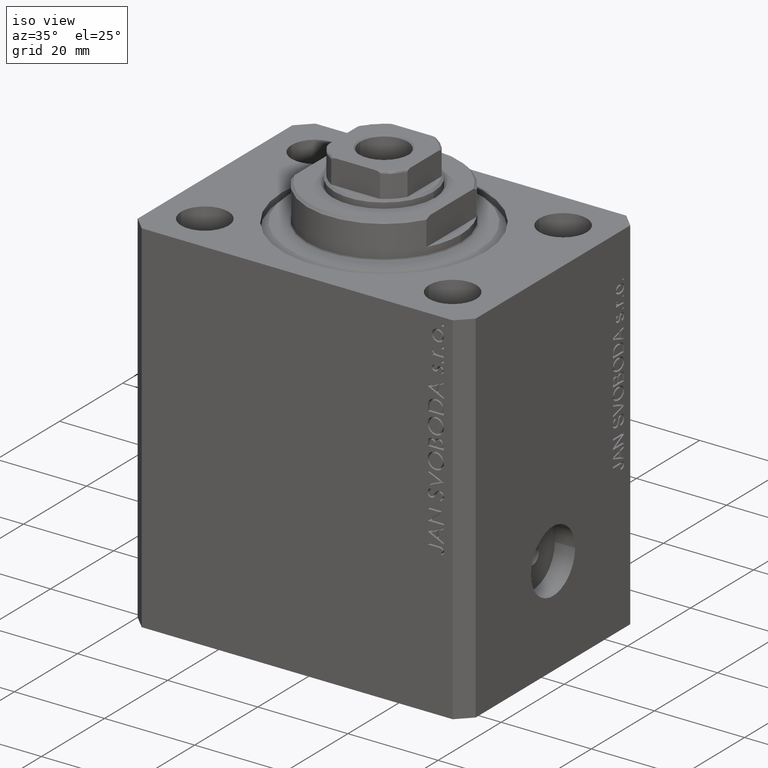
[diagram: clean part render]
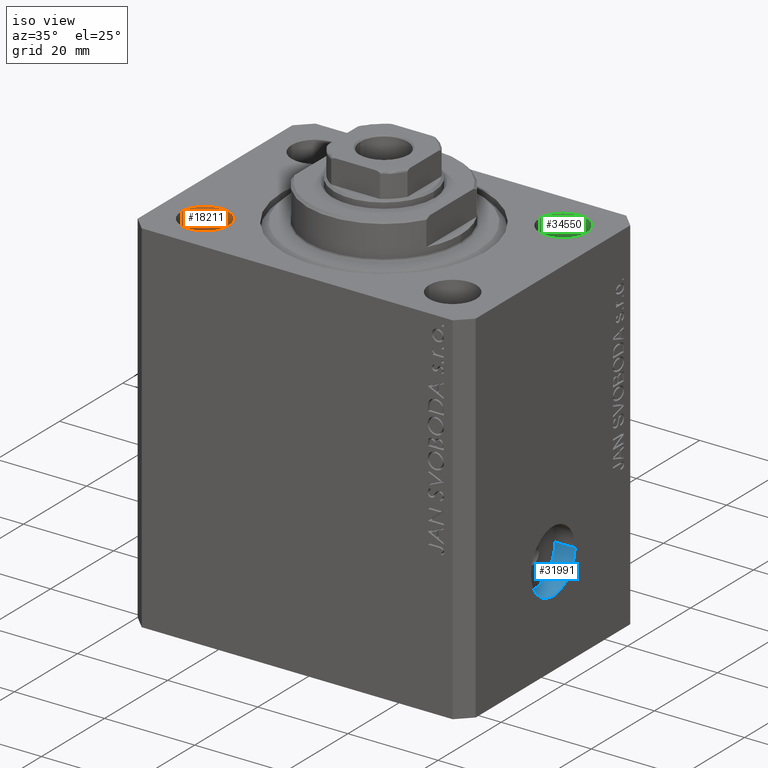
[diagram: same view with three faces highlighted in distinct colors, each labeled with its STEP entity id]
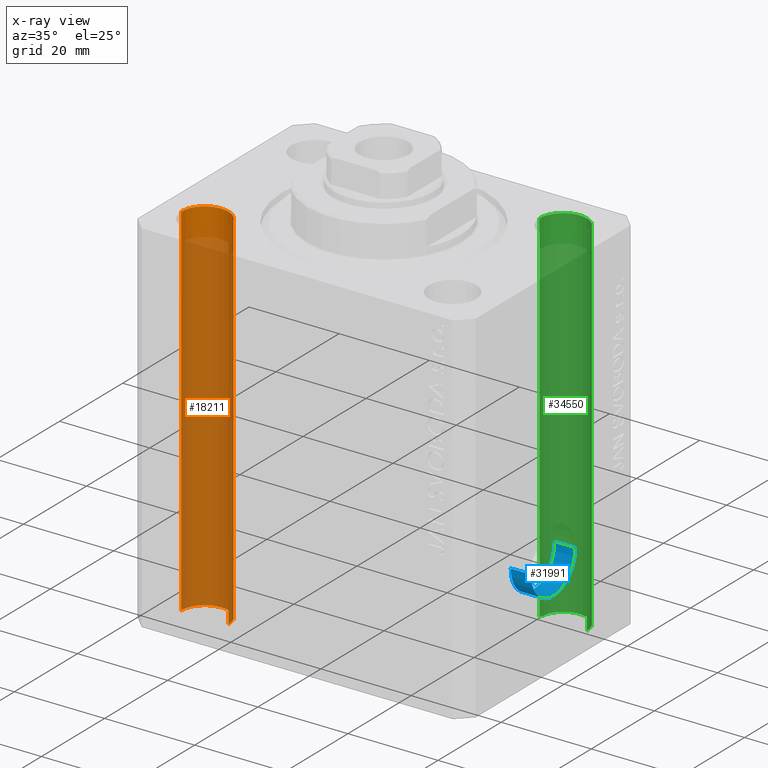
[diagram: x-ray of the same camera — body ghosted, the three highlighted faces saturated]
A machine part, iso view with three faces highlighted in distinct colors.
The next image is the same camera in x-ray (body ghosted, the three faces saturated) — at least one of them is partly hidden behind the body in this view.
Their STEP definitions:

[orange] entity #18211 — the highlighted cylindrical surface (edge-blend (fillet) strip) has radius 5.25 mm, axis along (0, 0, 1).
#1654 = DIRECTION ( 'NONE',  ( -0.000000000000000000, -0.000000000000000000, 1.000000000000000000 ) ) ;
#2170 = EDGE_CURVE ( 'NONE', #2631, #34001, #3725, .T. ) ;
#2529 = EDGE_CURVE ( 'NONE', #34367, #4119, #18902, .T. ) ;
#2631 = VERTEX_POINT ( 'NONE', #39115 ) ;
#2853 = ORIENTED_EDGE ( 'NONE', *, *, #37071, .F. ) ;
#3173 = FACE_OUTER_BOUND ( 'NONE', #4313, .T. ) ;
#3725 = CIRCLE ( 'NONE', #34793, 5.250000000000000888 ) ;
#4119 = VERTEX_POINT ( 'NONE', #25224 ) ;
#4313 = EDGE_LOOP ( 'NONE', ( #2853, #25876, #22078, #36600 ) ) ;
#4456 = CARTESIAN_POINT ( 'NONE',  ( -27.49999999999999289, -17.50000000000000000, -94.84924240491750425 ) ) ;
#6106 = DIRECTION ( 'NONE',  ( 0.000000000000000000, 0.000000000000000000, 1.000000000000000000 ) ) ;
#6908 = AXIS2_PLACEMENT_3D ( 'NONE', #4456, #27176, #16975 ) ;
#8077 = AXIS2_PLACEMENT_3D ( 'NONE', #30979, #6106, #17410 ) ;
#11174 = DIRECTION ( 'NONE',  ( -0.000000000000000000, -0.000000000000000000, -1.000000000000000000 ) ) ;
#16496 = VECTOR ( 'NONE', #32568, 1000.000000000000000 ) ;
#16975 = DIRECTION ( 'NONE',  ( 1.000000000000000000, 0.000000000000000000, 0.000000000000000000 ) ) ;
#17410 = DIRECTION ( 'NONE',  ( 1.000000000000000000, 0.000000000000000000, 0.000000000000000000 ) ) ;
#17781 = CARTESIAN_POINT ( 'NONE',  ( -22.24999999999999289, -17.50000000000000000, 0.000000000000000000 ) ) ;
#18211 = ADVANCED_FACE ( 'NONE', ( #3173 ), #27619, .F. ) ;
#18324 = CARTESIAN_POINT ( 'NONE',  ( -32.74999999999999289, -17.50000000000000000, -94.84924240491750425 ) ) ;
#18902 = CIRCLE ( 'NONE', #8077, 5.250000000000000888 ) ;
#19056 = CARTESIAN_POINT ( 'NONE',  ( -22.24999999999999289, -17.50000000000000000, -94.84924240491750425 ) ) ;
#22078 = ORIENTED_EDGE ( 'NONE', *, *, #27621, .T. ) ;
#22340 = CARTESIAN_POINT ( 'NONE',  ( -22.24999999999999289, -17.50000000000000000, -80.00000000000000000 ) ) ;
#25187 = LINE ( 'NONE', #19056, #42360 ) ;
#25205 = CARTESIAN_POINT ( 'NONE',  ( -27.49999999999999289, -17.50000000000000000, -80.00000000000000000 ) ) ;
#25224 = CARTESIAN_POINT ( 'NONE',  ( -32.74999999999999289, -17.50000000000000000, 0.000000000000000000 ) ) ;
#25876 = ORIENTED_EDGE ( 'NONE', *, *, #2170, .T. ) ;
#27176 = DIRECTION ( 'NONE',  ( -0.000000000000000000, -0.000000000000000000, 1.000000000000000000 ) ) ;
#27619 = CYLINDRICAL_SURFACE ( 'NONE', #6908, 5.250000000000000888 ) ;
#27621 = EDGE_CURVE ( 'NONE', #34001, #34367, #25187, .T. ) ;
#28299 = LINE ( 'NONE', #18324, #16496 ) ;
#30979 = CARTESIAN_POINT ( 'NONE',  ( -27.49999999999999289, -17.50000000000000000, 0.000000000000000000 ) ) ;
#32568 = DIRECTION ( 'NONE',  ( -0.000000000000000000, -0.000000000000000000, 1.000000000000000000 ) ) ;
#34001 = VERTEX_POINT ( 'NONE', #22340 ) ;
#34367 = VERTEX_POINT ( 'NONE', #17781 ) ;
#34793 = AXIS2_PLACEMENT_3D ( 'NONE', #25205, #11174, #39443 ) ;
#36600 = ORIENTED_EDGE ( 'NONE', *, *, #2529, .T. ) ;
#37071 = EDGE_CURVE ( 'NONE', #2631, #4119, #28299, .T. ) ;
#39115 = CARTESIAN_POINT ( 'NONE',  ( -32.74999999999999289, -17.50000000000000000, -80.00000000000000000 ) ) ;
#39443 = DIRECTION ( 'NONE',  ( 1.000000000000000000, 0.000000000000000000, 0.000000000000000000 ) ) ;
#42360 = VECTOR ( 'NONE', #1654, 1000.000000000000000 ) ;

[blue] entity #31991 — the highlighted cylindrical surface (partial cylindrical patch) has radius 7 mm, axis along (1, -0, 0).
#1193 = ORIENTED_EDGE ( 'NONE', *, *, #42527, .T. ) ;
#3987 = LINE ( 'NONE', #10105, #17168 ) ;
#4217 = EDGE_LOOP ( 'NONE', ( #29700, #1193, #35819, #43515 ) ) ;
#4602 = CARTESIAN_POINT ( 'NONE',  ( 33.00000000000017053, -6.999999999999920064, -58.00000000000000000 ) ) ;
#6988 = AXIS2_PLACEMENT_3D ( 'NONE', #31438, #21255, #35063 ) ;
#7868 = AXIS2_PLACEMENT_3D ( 'NONE', #16829, #10486, #17277 ) ;
#8062 = CARTESIAN_POINT ( 'NONE',  ( 37.50000000000034817, 7.000000000000006217, -58.00000000000000000 ) ) ;
#8270 = CARTESIAN_POINT ( 'NONE',  ( 33.00000000000025580, 7.279302749271440798E-14, -58.00000000000000000 ) ) ;
#8411 = VERTEX_POINT ( 'NONE', #14695 ) ;
#10105 = CARTESIAN_POINT ( 'NONE',  ( 33.00000000000034817, 7.000000000000065725, -58.00000000000000000 ) ) ;
#10486 = DIRECTION ( 'NONE',  ( 1.000000000000000000, -1.334402673828349134E-14, 0.000000000000000000 ) ) ;
#12956 = LINE ( 'NONE', #19288, #25312 ) ;
#13390 = DIRECTION ( 'NONE',  ( 1.000000000000000000, -1.334402673828348976E-14, -0.000000000000000000 ) ) ;
#14695 = CARTESIAN_POINT ( 'NONE',  ( 33.00000000000034817, 7.000000000000065725, -58.00000000000000000 ) ) ;
#16829 = CARTESIAN_POINT ( 'NONE',  ( 33.00000000000025580, 7.279302749271440798E-14, -58.00000000000000000 ) ) ;
#17168 = VECTOR ( 'NONE', #17791, 1000.000000000000000 ) ;
#17277 = DIRECTION ( 'NONE',  ( 1.288651725011343653E-14, 1.000000000000000000, 0.000000000000000000 ) ) ;
#17791 = DIRECTION ( 'NONE',  ( 1.000000000000000000, -1.334402673828348976E-14, -0.000000000000000000 ) ) ;
#19288 = CARTESIAN_POINT ( 'NONE',  ( 33.00000000000017053, -6.999999999999920064, -58.00000000000000000 ) ) ;
#21255 = DIRECTION ( 'NONE',  ( 1.000000000000000000, -1.334402673828349134E-14, 0.000000000000000000 ) ) ;
#21866 = VERTEX_POINT ( 'NONE', #4602 ) ;
#25312 = VECTOR ( 'NONE', #13390, 1000.000000000000000 ) ;
#25478 = FACE_OUTER_BOUND ( 'NONE', #4217, .T. ) ;
#29096 = DIRECTION ( 'NONE',  ( 1.000000000000000000, -1.334402673828348976E-14, -0.000000000000000000 ) ) ;
#29700 = ORIENTED_EDGE ( 'NONE', *, *, #38792, .F. ) ;
#30088 = AXIS2_PLACEMENT_3D ( 'NONE', #8270, #29096, #35882 ) ;
#30175 = EDGE_CURVE ( 'NONE', #40099, #33098, #43135, .T. ) ;
#30877 = EDGE_CURVE ( 'NONE', #8411, #33098, #3987, .T. ) ;
#31438 = CARTESIAN_POINT ( 'NONE',  ( 37.50000000000025580, 1.274490717043870406E-14, -58.00000000000000000 ) ) ;
#31991 = ADVANCED_FACE ( 'NONE', ( #25478 ), #39271, .F. ) ;
#33098 = VERTEX_POINT ( 'NONE', #8062 ) ;
#35063 = DIRECTION ( 'NONE',  ( 1.288651725011343653E-14, 1.000000000000000000, 0.000000000000000000 ) ) ;
#35819 = ORIENTED_EDGE ( 'NONE', *, *, #30175, .T. ) ;
#35882 = DIRECTION ( 'NONE',  ( 1.288651725011343653E-14, 1.000000000000000000, 0.000000000000000000 ) ) ;
#37484 = CIRCLE ( 'NONE', #7868, 6.999999999999992895 ) ;
#37904 = CARTESIAN_POINT ( 'NONE',  ( 37.50000000000016342, -6.999999999999980460, -58.00000000000000000 ) ) ;
#38792 = EDGE_CURVE ( 'NONE', #21866, #8411, #37484, .T. ) ;
#39271 = CYLINDRICAL_SURFACE ( 'NONE', #30088, 6.999999999999992895 ) ;
#40099 = VERTEX_POINT ( 'NONE', #37904 ) ;
#42527 = EDGE_CURVE ( 'NONE', #21866, #40099, #12956, .T. ) ;
#43135 = CIRCLE ( 'NONE', #6988, 6.999999999999992895 ) ;
#43515 = ORIENTED_EDGE ( 'NONE', *, *, #30877, .F. ) ;

[green] entity #34550 — the highlighted cylindrical surface (edge-blend (fillet) strip) has radius 5.25 mm, axis along (0, 0, 1).
#339 = AXIS2_PLACEMENT_3D ( 'NONE', #13024, #26831, #9617 ) ;
#2615 = ORIENTED_EDGE ( 'NONE', *, *, #16675, .T. ) ;
#3227 = CIRCLE ( 'NONE', #339, 5.250000000000000888 ) ;
#3473 = DIRECTION ( 'NONE',  ( -0.000000000000000000, -0.000000000000000000, 1.000000000000000000 ) ) ;
#3764 = DIRECTION ( 'NONE',  ( 1.000000000000000000, 0.000000000000000000, 0.000000000000000000 ) ) ;
#5810 = CARTESIAN_POINT ( 'NONE',  ( 32.75000000000000000, 17.49999999999999289, -80.00000000000000000 ) ) ;
#9617 = DIRECTION ( 'NONE',  ( 1.000000000000000000, 0.000000000000000000, 0.000000000000000000 ) ) ;
#9775 = CIRCLE ( 'NONE', #43721, 5.250000000000000888 ) ;
#10455 = CARTESIAN_POINT ( 'NONE',  ( 32.75000000000000000, 17.49999999999999289, 0.000000000000000000 ) ) ;
#11300 = LINE ( 'NONE', #38902, #16185 ) ;
#11972 = DIRECTION ( 'NONE',  ( -0.000000000000000000, -0.000000000000000000, 1.000000000000000000 ) ) ;
#12557 = CARTESIAN_POINT ( 'NONE',  ( 22.25000000000000000, 17.49999999999999289, 0.000000000000000000 ) ) ;
#13024 = CARTESIAN_POINT ( 'NONE',  ( 27.50000000000000000, 17.49999999999999289, 0.000000000000000000 ) ) ;
#13413 = EDGE_CURVE ( 'NONE', #36851, #31000, #11300, .T. ) ;
#14732 = ORIENTED_EDGE ( 'NONE', *, *, #38665, .T. ) ;
#16185 = VECTOR ( 'NONE', #11972, 1000.000000000000000 ) ;
#16675 = EDGE_CURVE ( 'NONE', #29669, #31000, #3227, .T. ) ;
#17273 = DIRECTION ( 'NONE',  ( 1.000000000000000000, 0.000000000000000000, 0.000000000000000000 ) ) ;
#17501 = FACE_OUTER_BOUND ( 'NONE', #43189, .T. ) ;
#18589 = AXIS2_PLACEMENT_3D ( 'NONE', #30410, #3473, #17273 ) ;
#22054 = DIRECTION ( 'NONE',  ( -0.000000000000000000, -0.000000000000000000, 1.000000000000000000 ) ) ;
#22443 = CARTESIAN_POINT ( 'NONE',  ( 22.25000000000000000, 17.49999999999999289, -80.00000000000000000 ) ) ;
#23219 = VERTEX_POINT ( 'NONE', #5810 ) ;
#24587 = CARTESIAN_POINT ( 'NONE',  ( 27.50000000000000000, 17.49999999999999289, -80.00000000000000000 ) ) ;
#24748 = EDGE_CURVE ( 'NONE', #36851, #23219, #9775, .T. ) ;
#26831 = DIRECTION ( 'NONE',  ( 0.000000000000000000, 0.000000000000000000, 1.000000000000000000 ) ) ;
#27920 = CYLINDRICAL_SURFACE ( 'NONE', #18589, 5.250000000000000888 ) ;
#29669 = VERTEX_POINT ( 'NONE', #10455 ) ;
#30410 = CARTESIAN_POINT ( 'NONE',  ( 27.50000000000000000, 17.49999999999999289, -94.84924240491750425 ) ) ;
#31000 = VERTEX_POINT ( 'NONE', #12557 ) ;
#32402 = VECTOR ( 'NONE', #22054, 1000.000000000000000 ) ;
#34550 = ADVANCED_FACE ( 'NONE', ( #17501 ), #27920, .F. ) ;
#35198 = LINE ( 'NONE', #35641, #32402 ) ;
#35329 = ORIENTED_EDGE ( 'NONE', *, *, #24748, .T. ) ;
#35641 = CARTESIAN_POINT ( 'NONE',  ( 32.75000000000000000, 17.49999999999999289, -94.84924240491750425 ) ) ;
#36851 = VERTEX_POINT ( 'NONE', #22443 ) ;
#38665 = EDGE_CURVE ( 'NONE', #23219, #29669, #35198, .T. ) ;
#38902 = CARTESIAN_POINT ( 'NONE',  ( 22.25000000000000000, 17.49999999999999289, -94.84924240491750425 ) ) ;
#40322 = ORIENTED_EDGE ( 'NONE', *, *, #13413, .F. ) ;
#42208 = DIRECTION ( 'NONE',  ( -0.000000000000000000, -0.000000000000000000, -1.000000000000000000 ) ) ;
#43189 = EDGE_LOOP ( 'NONE', ( #40322, #35329, #14732, #2615 ) ) ;
#43721 = AXIS2_PLACEMENT_3D ( 'NONE', #24587, #42208, #3764 ) ;